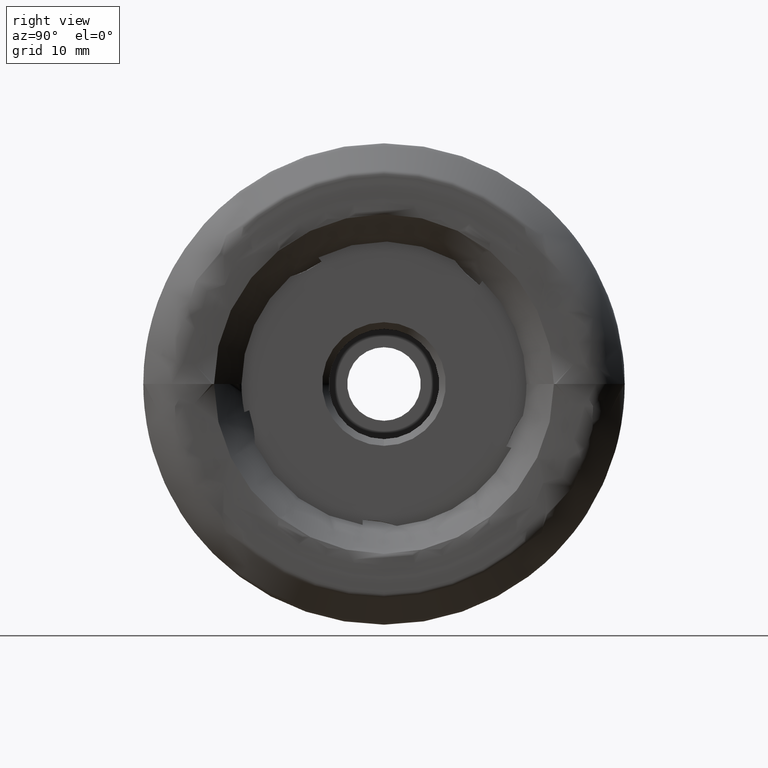
[diagram: clean part render]
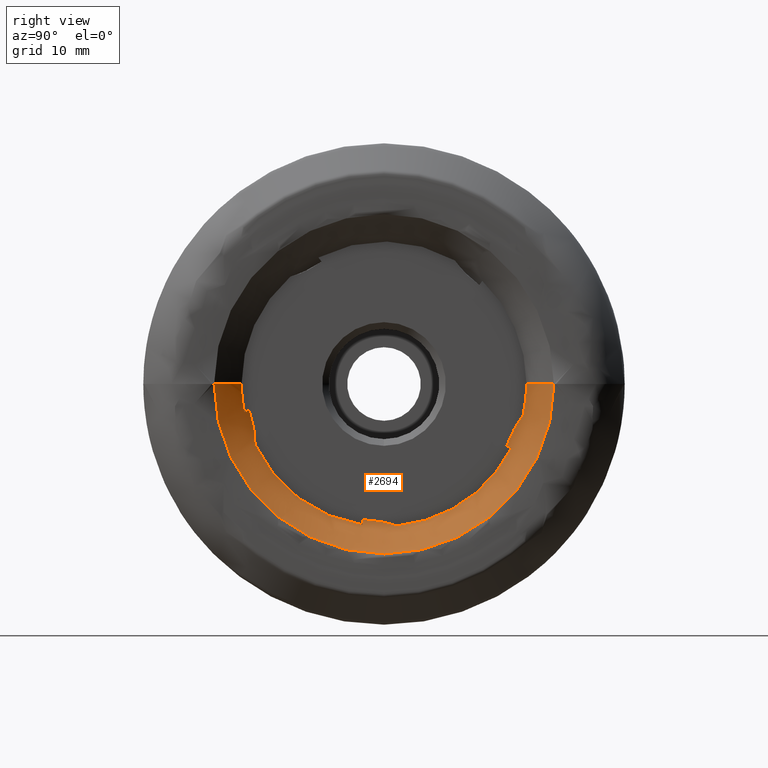
[diagram: same view with one face highlighted and labeled with its STEP entity id]
A machine part, right view. The second image highlights one B-rep face of the part: STEP entity #2694.
In plain terms, the highlighted face is a freeform B-spline surface patch.
Its self-contained STEP definition (entity closure, byte-faithful):
#49 = CARTESIAN_POINT ( 'NONE',  ( 0.2752037217593692500, -25.04831261393739800, 3.067533586670070300E-015 ) ) ;
#72 = B_SPLINE_CURVE_WITH_KNOTS ( 'NONE', 3,
 ( #6828, #8074, #1769, #2344 ),
 .UNSPECIFIED., .F., .F.,
 ( 4, 4 ),
 ( 1.110848382333413700E-015, 0.001181419706323047300 ),
 .UNSPECIFIED. ) ;
#123 = FACE_OUTER_BOUND ( 'NONE', #395, .T. ) ;
#157 = CARTESIAN_POINT ( 'NONE',  ( -4.457442109440719100, -20.25386223862677700, -3.696003295853195400 ) ) ;
#182 = CARTESIAN_POINT ( 'NONE',  ( -4.303491669173698000, 20.69473270646917500, -41.38946541293837800 ) ) ;
#289 = CARTESIAN_POINT ( 'NONE',  ( -3.603999999999997000, -20.89231122743275600, -4.206048646599414900 ) ) ;
#328 = CARTESIAN_POINT ( 'NONE',  ( 0.5545358754061542300, 25.27215190131582600, 0.0000000000000000000 ) ) ;
#341 = VERTEX_POINT ( 'NONE', #2778 ) ;
#360 = CARTESIAN_POINT ( 'NONE',  ( -3.284883104117855400, 21.53784684189865900, 0.0000000000000000000 ) ) ;
#395 = EDGE_LOOP ( 'NONE', ( #1408, #3314, #2626, #7825, #6628, #1127, #4841, #6120, #6499, #3692, #7761, #3578, #4648 ) ) ;
#532 = CIRCLE ( 'NONE', #5818, 21.31148783265668100 ) ;
#629 = CARTESIAN_POINT ( 'NONE',  ( -4.681419113148939100, -20.40645107926838300, 2.499069499618307600E-015 ) ) ;
#654 = CARTESIAN_POINT ( 'NONE',  ( -4.569884716467360200, -19.61531714845020200, -5.951789780674653600 ) ) ;
#714 = CARTESIAN_POINT ( 'NONE',  ( -3.696271257167257600, -21.34095224608886800, 2.613512885892924700E-015 ) ) ;
#726 = CARTESIAN_POINT ( 'NONE',  ( -0.6356144180622196300, -24.08101807548413500, 2.949074170635119500E-015 ) ) ;
#773 = CARTESIAN_POINT ( 'NONE',  ( -0.6356144180622256300, 24.08101807548413100, -5.898148341270239700E-015 ) ) ;
#814 = CARTESIAN_POINT ( 'NONE',  ( 0.6769082915252702100, 25.41563269011137300, 0.0000000000000000000 ) ) ;
#836 = CARTESIAN_POINT ( 'NONE',  ( -4.303491669173698000, 20.69473270646918600, -5.068747633637506900E-015 ) ) ;
#873 = VERTEX_POINT ( 'NONE', #1096 ) ;
#875 = CARTESIAN_POINT ( 'NONE',  ( -3.603999999999996100, -1.841873773234192600E-015, 0.0000000000000000000 ) ) ;
#891 = CARTESIAN_POINT ( 'NONE',  ( 0.2752037217593692500, -25.04831261393739800, 3.067533586670070300E-015 ) ) ;
#892 = CARTESIAN_POINT ( 'NONE',  ( -4.555823547283874400, 18.37378014027894200, -9.112905914339414400 ) ) ;
#947 = CARTESIAN_POINT ( 'NONE',  ( -3.999867298762100900, 20.28129024807411400, -5.434126395058284800 ) ) ;
#976 = CARTESIAN_POINT ( 'NONE',  ( -3.603999999999993900, -19.28910771262909000, -9.061447858486337400 ) ) ;
#1037 = CARTESIAN_POINT ( 'NONE',  ( 0.6769082915252689900, 25.41563269011135900, -50.83126538022273900 ) ) ;
#1096 = CARTESIAN_POINT ( 'NONE',  ( -3.603999999999481000, -3.193198404534862700, -21.07090405252693800 ) ) ;
#1127 = ORIENTED_EDGE ( 'NONE', *, *, #1996, .F. ) ;
#1254 = CARTESIAN_POINT ( 'NONE',  ( -4.555823547283878800, -20.08920143467152600, -4.130960731367824900 ) ) ;
#1277 = CARTESIAN_POINT ( 'NONE',  ( -3.603999999999993400, -21.31148783265668500, 2.609904535933075800E-015 ) ) ;
#1279 = CARTESIAN_POINT ( 'NONE',  ( -4.288681676927463800, -19.40745319466942900, -7.313957944106906700 ) ) ;
#1308 = CARTESIAN_POINT ( 'NONE',  ( -3.999867298762099100, -19.32745708598916300, -8.204259039873298000 ) ) ;
#1346 = CARTESIAN_POINT ( 'NONE',  ( 0.6769082915252762100, -25.41563269011137300, 3.761732853588447800E-015 ) ) ;
#1360 = EDGE_CURVE ( 'NONE', #8010, #6337, #5198, .T. ) ;
#1376 = VERTEX_POINT ( 'NONE', #7558 ) ;
#1397 = CARTESIAN_POINT ( 'NONE',  ( -0.07555159019366494700, 24.65636447817662700, -49.31272895635327600 ) ) ;
#1407 = DIRECTION ( 'NONE',  ( -1.220977734824268200E-016, 1.000000000000000000, 0.0000000000000000000 ) ) ;
#1408 = ORIENTED_EDGE ( 'NONE', *, *, #6111, .F. ) ;
#1426 = CARTESIAN_POINT ( 'NONE',  ( -4.681419113148944400, 20.40645107926837900, -4.998138999236615100E-015 ) ) ;
#1454 = CARTESIAN_POINT ( 'NONE',  ( -3.696271257167262900, 21.34095224608885400, -42.68190449217773600 ) ) ;
#1518 = CARTESIAN_POINT ( 'NONE',  ( -3.603999999999998800, 20.77880866217226300, -4.735042156339102500 ) ) ;
#1569 = CARTESIAN_POINT ( 'NONE',  ( -1.338085433748603400, 23.32823320355439400, 0.0000000000000000000 ) ) ;
#1629 = CARTESIAN_POINT ( 'NONE',  ( -2.742799803301217800, 21.79729347792444500, 0.0000000000000000000 ) ) ;
#1686 = VERTEX_POINT ( 'NONE', #1277 ) ;
#1707 = CARTESIAN_POINT ( 'NONE',  ( -3.603999999999997000, -20.89231122743275600, -4.206048646599414900 ) ) ;
#1755 = CARTESIAN_POINT ( 'NONE',  ( -3.906174343001796800, -3.285582372340284200, -20.83492104255609700 ) ) ;
#1769 = CARTESIAN_POINT ( 'NONE',  ( -4.174098294244824800, 18.50965931154161100, -9.554946605370551200 ) ) ;
#1874 = CARTESIAN_POINT ( 'NONE',  ( -3.603999999999998800, 20.77880866217226300, -4.735042156339102500 ) ) ;
#1929 = CARTESIAN_POINT ( 'NONE',  ( -3.826522958537566900, -19.30415345523375200, -8.649299004467312800 ) ) ;
#1971 = CARTESIAN_POINT ( 'NONE',  ( -2.121023493508121100, 22.55265442409470500, -45.10530884818943100 ) ) ;
#1984 = CARTESIAN_POINT ( 'NONE',  ( -2.121023493508115400, -22.55265442409471900, 2.761903605274398900E-015 ) ) ;
#1996 = EDGE_CURVE ( 'NONE', #6152, #2152, #2988, .T. ) ;
#2005 = CARTESIAN_POINT ( 'NONE',  ( -4.569884716465904400, -1.115980645110008300, -20.46800077260642000 ) ) ;
#2087 = CARTESIAN_POINT ( 'NONE',  ( -2.121023493508115400, -22.55265442409471900, 2.761903605274398900E-015 ) ) ;
#2130 = B_SPLINE_CURVE_WITH_KNOTS ( 'NONE', 3,
 ( #6521, #5271, #360, #1629, #2755, #1569, #4686, #7819, #6544, #328, #5301 ),
 .UNSPECIFIED., .F., .F.,
 ( 4, 1, 1, 1, 1, 1, 1, 1, 4 ),
 ( 0.8791903107012711800, 0.8809632238887606900, 0.9005956928494519600, 0.9156690691131113000, 0.9396366465011187800, 0.9680119014129221500, 0.9782880908943029100, 0.9885703992168121100, 1.000000000000000000 ),
 .UNSPECIFIED. ) ;
#2152 = VERTEX_POINT ( 'NONE', #1874 ) ;
#2337 = EDGE_CURVE ( 'NONE', #1686, #6893, #3131, .T. ) ;
#2344 = CARTESIAN_POINT ( 'NONE',  ( -4.457442109440742200, 18.23574808804038500, -9.557032364377546300 ) ) ;
#2365 = EDGE_CURVE ( 'NONE', #6337, #873, #532, .T. ) ;
#2461 = CIRCLE ( 'NONE', #2952, 21.31148783265668100 ) ;
#2538 = EDGE_CURVE ( 'NONE', #1376, #6152, #72, .T. ) ;
#2558 = CARTESIAN_POINT ( 'NONE',  ( -0.07555159019365885500, -24.65636447817664100, 3.019533783680951700E-015 ) ) ;
#2624 = CARTESIAN_POINT ( 'NONE',  ( -0.07555159019365885500, -24.65636447817664100, 3.019533783680951700E-015 ) ) ;
#2626 = ORIENTED_EDGE ( 'NONE', *, *, #3150, .T. ) ;
#2634 = CARTESIAN_POINT ( 'NONE',  ( -3.603999999999996100, -1.841873773234192600E-015, 0.0000000000000000000 ) ) ;
#2679 = CARTESIAN_POINT ( 'NONE',  ( -4.569884716467363700, 19.12136852558337100, -7.386320744217481000 ) ) ;
#2680 = AXIS2_PLACEMENT_3D ( 'NONE', #6101, #5517, #4214 ) ;
#2694 = ADVANCED_FACE ( 'NONE', ( #123 ), #6526, .T. ) ;
#2705 = DIRECTION ( 'NONE',  ( 1.000000000000000000, 1.234377343560681600E-016, -0.0000000000000000000 ) ) ;
#2706 = CARTESIAN_POINT ( 'NONE',  ( -4.681419113148944400, 20.40645107926836800, -40.81290215853676500 ) ) ;
#2745 = CARTESIAN_POINT ( 'NONE',  ( -4.288681676922309700, 0.2351323856074840900, -20.73856149960457900 ) ) ;
#2755 = CARTESIAN_POINT ( 'NONE',  ( -2.121023493508121100, 22.55265442409471500, 0.0000000000000000000 ) ) ;
#2778 = CARTESIAN_POINT ( 'NONE',  ( -3.603999999985795500, 1.917712301783339100, -21.22502987440776700 ) ) ;
#2880 = CARTESIAN_POINT ( 'NONE',  ( 0.5545358754061542300, 25.27215190131581600, -50.54430380263164600 ) ) ;
#2952 = AXIS2_PLACEMENT_3D ( 'NONE', #875, #3319, #6485 ) ;
#2988 = B_SPLINE_CURVE_WITH_KNOTS ( 'NONE', 3,
 ( #4598, #892, #6439, #4655, #2679, #5250, #6547, #947, #7795, #1518 ),
 .UNSPECIFIED., .F., .F.,
 ( 4, 2, 2, 2, 4 ),
 ( 1.100558666808491900E-017, 0.001406259977225893100, 0.002812519954451774900, 0.004218779931677657500, 0.005625039908903539300 ),
 .UNSPECIFIED. ) ;
#3010 = CARTESIAN_POINT ( 'NONE',  ( -4.174098294244585900, -3.367494944532742900, -20.55637298404988700 ) ) ;
#3051 = CARTESIAN_POINT ( 'NONE',  ( -4.174098294244838100, -20.46842310681185500, -3.866283484349173300 ) ) ;
#3131 = B_SPLINE_CURVE_WITH_KNOTS ( 'NONE', 3,
 ( #3798, #6999, #4494, #5055, #1984, #6424, #726, #2558, #49, #5090, #1346 ),
 .UNSPECIFIED., .F., .F.,
 ( 4, 1, 1, 1, 1, 1, 1, 1, 4 ),
 ( 0.8791903107012712900, 0.8809632238887606900, 0.9005956928494519600, 0.9156690691131113000, 0.9396366465011187800, 0.9680119014129221500, 0.9782880908943029100, 0.9885703992168121100, 1.000000000000000000 ),
 .UNSPECIFIED. ) ;
#3150 = EDGE_CURVE ( 'NONE', #6893, #6732, #3306, .T. ) ;
#3179 = CARTESIAN_POINT ( 'NONE',  ( -3.603999999999993900, -19.28910771262909000, -9.061447858486337400 ) ) ;
#3213 = CARTESIAN_POINT ( 'NONE',  ( -1.338085433748597700, -23.32823320355440400, -46.65646640710878800 ) ) ;
#3226 = CARTESIAN_POINT ( 'NONE',  ( 0.2752037217593630300, 25.04831261393738400, -50.09662522787478900 ) ) ;
#3278 = CARTESIAN_POINT ( 'NONE',  ( -4.555823547284411700, -2.989078237959347500, -20.29054612705762400 ) ) ;
#3306 = CIRCLE ( 'NONE', #2680, 25.41563269011137300 ) ;
#3309 = CARTESIAN_POINT ( 'NONE',  ( -3.999867298753443800, 1.099102036137000700, -20.96789065496521000 ) ) ;
#3314 = ORIENTED_EDGE ( 'NONE', *, *, #2337, .T. ) ;
#3319 = DIRECTION ( 'NONE',  ( 1.000000000000000000, 1.234377343560681600E-016, -0.0000000000000000000 ) ) ;
#3339 = CARTESIAN_POINT ( 'NONE',  ( -4.609825143544950000, -2.523119199977512200, -20.31159043091099300 ) ) ;
#3389 = CARTESIAN_POINT ( 'NONE',  ( -4.457442109440711100, -3.454121842239770100, -20.29651246503180000 ) ) ;
#3464 = B_SPLINE_CURVE_WITH_KNOTS ( 'NONE', 3,
 ( #6796, #1755, #3010, #5457 ),
 .UNSPECIFIED., .F., .F.,
 ( 4, 4 ),
 ( 0.0000000000000000000, 0.001181419706323005700 ),
 .UNSPECIFIED. ) ;
#3501 = CARTESIAN_POINT ( 'NONE',  ( 0.6769082915252753200, -25.41563269011138000, -50.83126538022273900 ) ) ;
#3578 = ORIENTED_EDGE ( 'NONE', *, *, #1360, .F. ) ;
#3684 = AXIS2_PLACEMENT_3D ( 'NONE', #6523, #2705, #7716 ) ;
#3692 = ORIENTED_EDGE ( 'NONE', *, *, #7561, .F. ) ;
#3798 = CARTESIAN_POINT ( 'NONE',  ( -3.603999999999993400, -21.31148783265668500, 2.609904535933075800E-015 ) ) ;
#3836 = CARTESIAN_POINT ( 'NONE',  ( -1.338085433748603400, 23.32823320355439400, -5.713769224499178900E-015 ) ) ;
#3861 = CARTESIAN_POINT ( 'NONE',  ( -0.07555159019365885500, -24.65636447817664500, -49.31272895635327600 ) ) ;
#3863 = VERTEX_POINT ( 'NONE', #289 ) ;
#3879 = CARTESIAN_POINT ( 'NONE',  ( -4.457442109440742200, 18.23574808804038500, -9.557032364377546300 ) ) ;
#3888 = CARTESIAN_POINT ( 'NONE',  ( -1.338085433748597500, -23.32823320355439700, 2.856884612249589500E-015 ) ) ;
#3914 = CARTESIAN_POINT ( 'NONE',  ( -4.303491669173692600, -20.69473270646918900, 2.534373816818753400E-015 ) ) ;
#3946 = CARTESIAN_POINT ( 'NONE',  ( -3.696271257167257600, -21.34095224608887500, -42.68190449217772200 ) ) ;
#4036 = DIRECTION ( 'NONE',  ( 1.000000000000000000, 1.234377343560681600E-016, -0.0000000000000000000 ) ) ;
#4213 = CARTESIAN_POINT ( 'NONE',  ( -3.906174343001934900, -20.70215691224220600, -4.038525170881245100 ) ) ;
#4214 = DIRECTION ( 'NONE',  ( -1.109130621626857800E-016, 1.000000000000000000, 0.0000000000000000000 ) ) ;
#4374 = CARTESIAN_POINT ( 'NONE',  ( -4.609825143544375300, -19.94960923475829500, -4.576016576765544700 ) ) ;
#4454 = CARTESIAN_POINT ( 'NONE',  ( -0.6356144180622196300, -24.08101807548413500, 2.949074170635119500E-015 ) ) ;
#4467 = CIRCLE ( 'NONE', #7325, 21.31148783265668100 ) ;
#4493 = CARTESIAN_POINT ( 'NONE',  ( -4.404313069002735200, -0.2071264372779462700, -20.63704915021899600 ) ) ;
#4494 = CARTESIAN_POINT ( 'NONE',  ( -3.284883104117848300, -21.53784684189866300, 2.637625519545712600E-015 ) ) ;
#4520 = CARTESIAN_POINT ( 'NONE',  ( -3.603999999999998800, 21.31148783265667700, 0.0000000000000000000 ) ) ;
#4550 = CARTESIAN_POINT ( 'NONE',  ( -4.617468603831492900, -1.588134684126904000, -20.39989976117147200 ) ) ;
#4598 = CARTESIAN_POINT ( 'NONE',  ( -4.457442109440742200, 18.23574808804038500, -9.557032364377546300 ) ) ;
#4646 = EDGE_CURVE ( 'NONE', #2152, #8021, #5322, .T. ) ;
#4648 = ORIENTED_EDGE ( 'NONE', *, *, #7648, .F. ) ;
#4655 = CARTESIAN_POINT ( 'NONE',  ( -4.617468603831925500, 18.91069699287429300, -7.814321549849982100 ) ) ;
#4686 = CARTESIAN_POINT ( 'NONE',  ( -0.6356144180622256300, 24.08101807548413100, 0.0000000000000000000 ) ) ;
#4727 = CARTESIAN_POINT ( 'NONE',  ( -3.603999999999996100, -1.841873773234192600E-015, 0.0000000000000000000 ) ) ;
#4841 = ORIENTED_EDGE ( 'NONE', *, *, #2538, .F. ) ;
#4888 = CARTESIAN_POINT ( 'NONE',  ( 0.5545358754061605600, -25.27215190131583000, 3.094945993351211900E-015 ) ) ;
#4993 = CARTESIAN_POINT ( 'NONE',  ( -4.681419113148940000, -20.40645107926838600, -40.81290215853675100 ) ) ;
#5010 = CARTESIAN_POINT ( 'NONE',  ( -4.404313069006546400, -19.46332421502366500, -6.863651323480095100 ) ) ;
#5055 = CARTESIAN_POINT ( 'NONE',  ( -2.742799803301212400, -21.79729347792444800, 2.669398568781565100E-015 ) ) ;
#5078 = CARTESIAN_POINT ( 'NONE',  ( -2.742799803301217800, 21.79729347792444500, -5.338797137563131000E-015 ) ) ;
#5090 = CARTESIAN_POINT ( 'NONE',  ( 0.5545358754061605600, -25.27215190131583000, 3.094945993351211900E-015 ) ) ;
#5107 = CARTESIAN_POINT ( 'NONE',  ( -0.6356144180622196300, -24.08101807548414200, -48.16203615096824800 ) ) ;
#5137 = CARTESIAN_POINT ( 'NONE',  ( -3.696271257167262900, 21.34095224608886500, -5.227025771785849400E-015 ) ) ;
#5198 = B_SPLINE_CURVE_WITH_KNOTS ( 'NONE', 3,
 ( #6984, #1254, #4374, #5646, #654, #5010, #1279, #1308, #1929, #3179 ),
 .UNSPECIFIED., .F., .F.,
 ( 4, 2, 2, 2, 4 ),
 ( 0.0000000000000000000, 0.001406259977225887000, 0.002812519954451774000, 0.004218779931677661000, 0.005625039908903550600 ),
 .UNSPECIFIED. ) ;
#5244 = EDGE_CURVE ( 'NONE', #6768, #341, #7091, .T. ) ;
#5250 = CARTESIAN_POINT ( 'NONE',  ( -4.404313069006550000, 19.56299448230737100, -6.574187849053923400 ) ) ;
#5271 = CARTESIAN_POINT ( 'NONE',  ( -3.579726352751340100, 21.32911838309724900, 0.0000000000000000000 ) ) ;
#5301 = CARTESIAN_POINT ( 'NONE',  ( 0.6769082915252702100, 25.41563269011137300, 0.0000000000000000000 ) ) ;
#5322 = CIRCLE ( 'NONE', #3684, 21.31148783265668100 ) ;
#5404 = CARTESIAN_POINT ( 'NONE',  ( 0.5545358754061605600, -25.27215190131583700, -50.54430380263164600 ) ) ;
#5457 = CARTESIAN_POINT ( 'NONE',  ( -4.457442109440711100, -3.454121842239770100, -20.29651246503180000 ) ) ;
#5517 = DIRECTION ( 'NONE',  ( 1.000000000000000000, 1.234377343560681600E-016, -0.0000000000000000000 ) ) ;
#5646 = CARTESIAN_POINT ( 'NONE',  ( -4.617468603831922800, -19.71280932263292100, -5.484818196647096600 ) ) ;
#5710 = CARTESIAN_POINT ( 'NONE',  ( -2.742799803301212900, -21.79729347792445500, -43.59458695584888200 ) ) ;
#5736 = CARTESIAN_POINT ( 'NONE',  ( -0.6356144180622256300, 24.08101807548412400, -48.16203615096824800 ) ) ;
#5763 = CARTESIAN_POINT ( 'NONE',  ( -0.07555159019366494700, 24.65636447817663800, -6.039067567361903400E-015 ) ) ;
#5818 = AXIS2_PLACEMENT_3D ( 'NONE', #2634, #7605, #1407 ) ;
#5822 = CARTESIAN_POINT ( 'NONE',  ( -2.742799803301212400, -21.79729347792444800, 2.669398568781565100E-015 ) ) ;
#5832 = CARTESIAN_POINT ( 'NONE',  ( -3.826522958526882500, 1.525273117953521900, -21.09820503758405500 ) ) ;
#5881 = B_SPLINE_CURVE_WITH_KNOTS ( 'NONE', 3,
 ( #1707, #4213, #3051, #7154 ),
 .UNSPECIFIED., .F., .F.,
 ( 4, 4 ),
 ( 0.0000000000000000000, 0.001181419706321879800 ),
 .UNSPECIFIED. ) ;
#5884 = EDGE_CURVE ( 'NONE', #8021, #6732, #2130, .T. ) ;
#6034 = CARTESIAN_POINT ( 'NONE',  ( 0.6769082915252753200, -25.41563269011137600, 3.112517322224972700E-015 ) ) ;
#6101 = CARTESIAN_POINT ( 'NONE',  ( 0.6769082915252731000, -1.313448152742206900E-015, 0.0000000000000000000 ) ) ;
#6111 = EDGE_CURVE ( 'NONE', #1686, #3863, #2461, .T. ) ;
#6120 = ORIENTED_EDGE ( 'NONE', *, *, #8057, .F. ) ;
#6152 = VERTEX_POINT ( 'NONE', #3879 ) ;
#6337 = VERTEX_POINT ( 'NONE', #976 ) ;
#6414 = CARTESIAN_POINT ( 'NONE',  ( -4.303491669173692600, -20.69473270646919600, -41.38946541293837100 ) ) ;
#6424 = CARTESIAN_POINT ( 'NONE',  ( -1.338085433748597500, -23.32823320355439700, 2.856884612249589500E-015 ) ) ;
#6439 = CARTESIAN_POINT ( 'NONE',  ( -4.609825143544378000, 18.53778372400758600, -8.676255582467943500 ) ) ;
#6485 = DIRECTION ( 'NONE',  ( -1.220977734824268200E-016, 1.000000000000000000, 0.0000000000000000000 ) ) ;
#6499 = ORIENTED_EDGE ( 'NONE', *, *, #5244, .F. ) ;
#6521 = CARTESIAN_POINT ( 'NONE',  ( -3.603999999999998800, 21.31148783265667700, 0.0000000000000000000 ) ) ;
#6523 = CARTESIAN_POINT ( 'NONE',  ( -3.603999999999996100, -1.841873773234192600E-015, 0.0000000000000000000 ) ) ;
#6526 =( BOUNDED_SURFACE ( )  B_SPLINE_SURFACE ( 3, 3, ( 
 ( #629, #4993, #2706, #1426 ),
 ( #3914, #6414, #182, #836 ),
 ( #714, #3946, #1454, #5137 ),
 ( #5822, #5710, #7630, #5078 ),
 ( #2087, #7089, #1971, #7662 ),
 ( #3888, #3213, #7592, #3836 ),
 ( #4454, #5107, #5736, #773 ),
 ( #2624, #3861, #1397, #5763 ),
 ( #891, #7940, #3226, #7234 ),
 ( #4888, #5404, #2880, #7273 ),
 ( #6034, #3501, #1037, #7894 ) ),
 .UNSPECIFIED., .F., .F., .T. ) 
 B_SPLINE_SURFACE_WITH_KNOTS ( ( 4, 1, 1, 1, 1, 1, 1, 1, 4 ),
 ( 4, 4 ),
 ( 0.8515065044929359700, 0.8809632238887606900, 0.9005956928494519600, 0.9156690691131113000, 0.9396366465011187800, 0.9680119014129221500, 0.9782880908943029100, 0.9885703992168121100, 1.000000000000000000 ),
 ( 0.0000000000000000000, 1.000000000000000000 ),
 .UNSPECIFIED. ) 
 GEOMETRIC_REPRESENTATION_ITEM ( )  RATIONAL_B_SPLINE_SURFACE ( (
 ( 1.000000000000000000, 0.3333333333333334300, 0.3333333333333334300, 1.000000000000000000),
 ( 1.000000000000000000, 0.3333333333333334300, 0.3333333333333334300, 1.000000000000000000),
 ( 1.000000000000000000, 0.3333333333333334300, 0.3333333333333334300, 1.000000000000000000),
 ( 1.000000000000000000, 0.3333333333333334300, 0.3333333333333334300, 1.000000000000000000),
 ( 1.000000000000000000, 0.3333333333333334300, 0.3333333333333334300, 1.000000000000000000),
 ( 1.000000000000000000, 0.3333333333333334300, 0.3333333333333334300, 1.000000000000000000),
 ( 1.000000000000000000, 0.3333333333333334300, 0.3333333333333334300, 1.000000000000000000),
 ( 1.000000000000000000, 0.3333333333333334300, 0.3333333333333334300, 1.000000000000000000),
 ( 1.000000000000000000, 0.3333333333333334300, 0.3333333333333334300, 1.000000000000000000),
 ( 1.000000000000000000, 0.3333333333333334300, 0.3333333333333334300, 1.000000000000000000),
 ( 1.000000000000000000, 0.3333333333333334300, 0.3333333333333334300, 1.000000000000000000) ) ) 
 REPRESENTATION_ITEM ( '' )  SURFACE ( )  );
#6544 = CARTESIAN_POINT ( 'NONE',  ( 0.2752037217593630800, 25.04831261393739400, 0.0000000000000000000 ) ) ;
#6547 = CARTESIAN_POINT ( 'NONE',  ( -4.288681676927465600, 19.79620395585726900, -6.184943754760448400 ) ) ;
#6628 = ORIENTED_EDGE ( 'NONE', *, *, #4646, .F. ) ;
#6732 = VERTEX_POINT ( 'NONE', #814 ) ;
#6768 = VERTEX_POINT ( 'NONE', #3389 ) ;
#6796 = CARTESIAN_POINT ( 'NONE',  ( -3.603999999999481000, -3.193198404534862700, -21.07090405252693800 ) ) ;
#6828 = CARTESIAN_POINT ( 'NONE',  ( -3.603999999999996100, 19.05286802997227000, -9.548179589530891000 ) ) ;
#6893 = VERTEX_POINT ( 'NONE', #7945 ) ;
#6984 = CARTESIAN_POINT ( 'NONE',  ( -4.457442109440719100, -20.25386223862677700, -3.696003295853195400 ) ) ;
#6999 = CARTESIAN_POINT ( 'NONE',  ( -3.579726352751331700, -21.32911838309725600, 2.612063655649502100E-015 ) ) ;
#7072 = CARTESIAN_POINT ( 'NONE',  ( -3.603999999985795500, 1.917712301783339100, -21.22502987440776700 ) ) ;
#7089 = CARTESIAN_POINT ( 'NONE',  ( -2.121023493508115400, -22.55265442409472600, -45.10530884818943100 ) ) ;
#7091 = B_SPLINE_CURVE_WITH_KNOTS ( 'NONE', 3,
 ( #7699, #3278, #3339, #4550, #2005, #4493, #2745, #3309, #5832, #7072 ),
 .UNSPECIFIED., .F., .F.,
 ( 4, 2, 2, 2, 4 ),
 ( 6.505213034913026600E-018, 0.001406259977233375600, 0.002812519954466743400, 0.004218779931700111800, 0.005625039908933480600 ),
 .UNSPECIFIED. ) ;
#7154 = CARTESIAN_POINT ( 'NONE',  ( -4.457442109440719100, -20.25386223862677700, -3.696003295853195400 ) ) ;
#7234 = CARTESIAN_POINT ( 'NONE',  ( 0.2752037217593630800, 25.04831261393739400, -6.135067173340141400E-015 ) ) ;
#7273 = CARTESIAN_POINT ( 'NONE',  ( 0.5545358754061542300, 25.27215190131582600, -6.189891986702424700E-015 ) ) ;
#7325 = AXIS2_PLACEMENT_3D ( 'NONE', #4727, #4036, #7854 ) ;
#7558 = CARTESIAN_POINT ( 'NONE',  ( -3.603999999999996100, 19.05286802997227000, -9.548179589530891000 ) ) ;
#7561 = EDGE_CURVE ( 'NONE', #873, #6768, #3464, .T. ) ;
#7592 = CARTESIAN_POINT ( 'NONE',  ( -1.338085433748603400, 23.32823320355438300, -46.65646640710878800 ) ) ;
#7605 = DIRECTION ( 'NONE',  ( 1.000000000000000000, 1.234377343560681600E-016, -0.0000000000000000000 ) ) ;
#7630 = CARTESIAN_POINT ( 'NONE',  ( -2.742799803301217800, 21.79729347792443400, -43.59458695584889700 ) ) ;
#7648 = EDGE_CURVE ( 'NONE', #3863, #8010, #5881, .T. ) ;
#7662 = CARTESIAN_POINT ( 'NONE',  ( -2.121023493508121100, 22.55265442409471500, -5.523807210548797700E-015 ) ) ;
#7699 = CARTESIAN_POINT ( 'NONE',  ( -4.457442109440711100, -3.454121842239770100, -20.29651246503180000 ) ) ;
#7716 = DIRECTION ( 'NONE',  ( -1.220977734824268200E-016, 1.000000000000000000, 0.0000000000000000000 ) ) ;
#7761 = ORIENTED_EDGE ( 'NONE', *, *, #2365, .F. ) ;
#7795 = CARTESIAN_POINT ( 'NONE',  ( -3.826522958537569100, 20.53692069762158200, -5.069082969482138900 ) ) ;
#7819 = CARTESIAN_POINT ( 'NONE',  ( -0.07555159019366494700, 24.65636447817663800, 0.0000000000000000000 ) ) ;
#7825 = ORIENTED_EDGE ( 'NONE', *, *, #5884, .F. ) ;
#7854 = DIRECTION ( 'NONE',  ( -1.220977734824268200E-016, 1.000000000000000000, 0.0000000000000000000 ) ) ;
#7894 = CARTESIAN_POINT ( 'NONE',  ( 0.6769082915252689900, 25.41563269011137300, -6.225034644449945500E-015 ) ) ;
#7940 = CARTESIAN_POINT ( 'NONE',  ( 0.2752037217593692500, -25.04831261393740500, -50.09662522787478900 ) ) ;
#7945 = CARTESIAN_POINT ( 'NONE',  ( 0.6769082915252762100, -25.41563269011137300, 3.761732853588447800E-015 ) ) ;
#8010 = VERTEX_POINT ( 'NONE', #157 ) ;
#8021 = VERTEX_POINT ( 'NONE', #4520 ) ;
#8057 = EDGE_CURVE ( 'NONE', #341, #1376, #4467, .T. ) ;
#8074 = CARTESIAN_POINT ( 'NONE',  ( -3.906174343001521900, 18.79988663454620800, -9.563119203648950500 ) ) ;